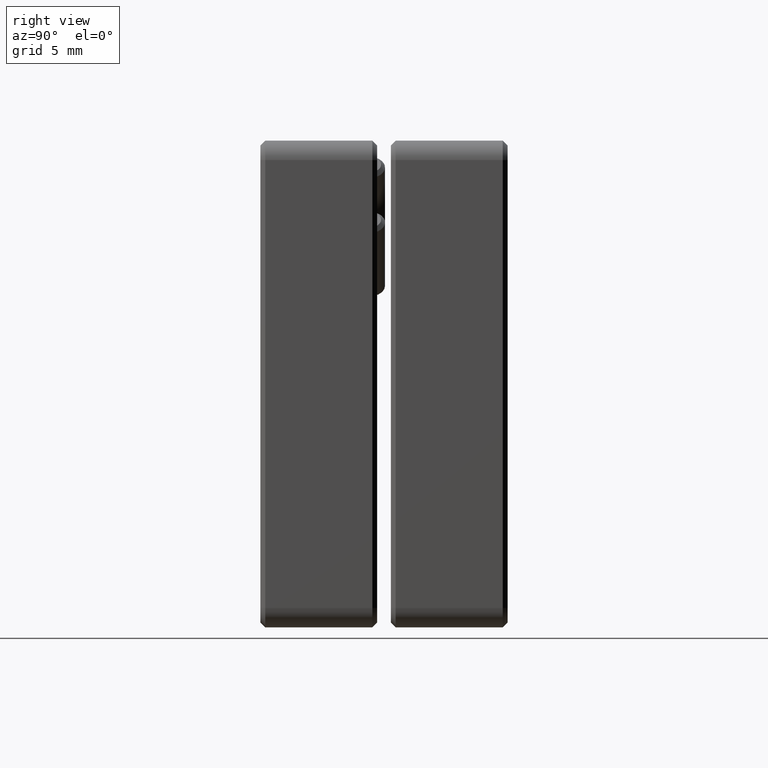
[diagram: clean part render]
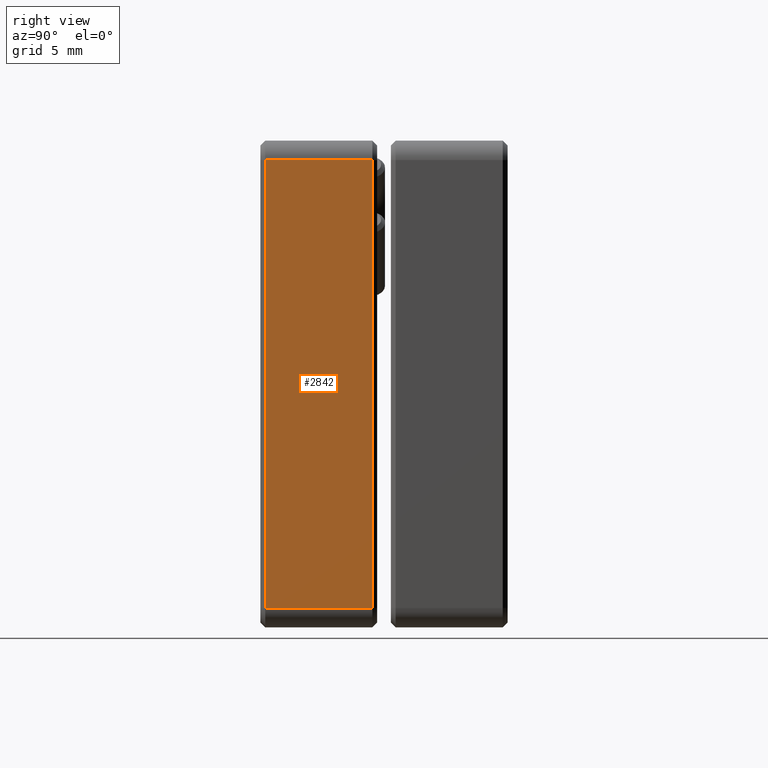
[diagram: same view with one face highlighted and labeled with its STEP entity id]
A machine part, right view. The second image highlights one B-rep face of the part: STEP entity #2842.
In plain terms, the highlighted planar face has unit normal (-1, 0, 0).
Its self-contained STEP definition (entity closure, byte-faithful):
#25 = CARTESIAN_POINT ( 'NONE',  ( 12.50000000000000711, 2.750000000000000000, 11.50000000000000178 ) ) ;
#28 = EDGE_CURVE ( 'NONE', #2700, #253, #1972, .T. ) ;
#36 = LINE ( 'NONE', #2045, #1917 ) ;
#42 = VECTOR ( 'NONE', #3046, 1000.000000000000000 ) ;
#113 = LINE ( 'NONE', #940, #3382 ) ;
#121 = CARTESIAN_POINT ( 'NONE',  ( 12.50000000000000355, 2.750000000000000000, -11.50000000000000000 ) ) ;
#253 = VERTEX_POINT ( 'NONE', #2708 ) ;
#346 = VERTEX_POINT ( 'NONE', #121 ) ;
#905 = AXIS2_PLACEMENT_3D ( 'NONE', #2452, #1469, #2699 ) ;
#940 = CARTESIAN_POINT ( 'NONE',  ( 12.50000000000000711, 2.750000000000000000, 11.50000000000000178 ) ) ;
#1049 = CARTESIAN_POINT ( 'NONE',  ( 12.50000000000000711, 3.000000000000000000, 11.50000000000000178 ) ) ;
#1089 = ORIENTED_EDGE ( 'NONE', *, *, #2413, .T. ) ;
#1113 = VERTEX_POINT ( 'NONE', #1802 ) ;
#1134 = FACE_OUTER_BOUND ( 'NONE', #1910, .T. ) ;
#1466 = ORIENTED_EDGE ( 'NONE', *, *, #28, .T. ) ;
#1469 = DIRECTION ( 'NONE',  ( -1.000000000000000000, 0.0000000000000000000, 1.387778780781445429E-16 ) ) ;
#1491 = LINE ( 'NONE', #3072, #42 ) ;
#1522 = DIRECTION ( 'NONE',  ( 1.387778780781445429E-16, 0.0000000000000000000, 1.000000000000000000 ) ) ;
#1802 = CARTESIAN_POINT ( 'NONE',  ( 12.50000000000000355, -2.750000000000000000, -11.50000000000000000 ) ) ;
#1805 = VECTOR ( 'NONE', #2072, 1000.000000000000000 ) ;
#1910 = EDGE_LOOP ( 'NONE', ( #1466, #2553, #2681, #1089 ) ) ;
#1917 = VECTOR ( 'NONE', #2828, 1000.000000000000000 ) ;
#1960 = PLANE ( 'NONE',  #905 ) ;
#1972 = LINE ( 'NONE', #1049, #1805 ) ;
#2045 = CARTESIAN_POINT ( 'NONE',  ( 12.50000000000000355, -2.750000000000000000, -12.49999999999999822 ) ) ;
#2052 = EDGE_CURVE ( 'NONE', #1113, #346, #1491, .T. ) ;
#2072 = DIRECTION ( 'NONE',  ( 0.0000000000000000000, -1.000000000000000000, 0.0000000000000000000 ) ) ;
#2413 = EDGE_CURVE ( 'NONE', #346, #2700, #113, .T. ) ;
#2452 = CARTESIAN_POINT ( 'NONE',  ( 12.50000000000000355, 3.000000000000000000, -12.49999999999999822 ) ) ;
#2476 = EDGE_CURVE ( 'NONE', #253, #1113, #36, .T. ) ;
#2553 = ORIENTED_EDGE ( 'NONE', *, *, #2476, .T. ) ;
#2681 = ORIENTED_EDGE ( 'NONE', *, *, #2052, .T. ) ;
#2699 = DIRECTION ( 'NONE',  ( 1.387778780781445429E-16, 0.0000000000000000000, 1.000000000000000000 ) ) ;
#2700 = VERTEX_POINT ( 'NONE', #25 ) ;
#2708 = CARTESIAN_POINT ( 'NONE',  ( 12.50000000000000711, -2.750000000000000000, 11.50000000000000178 ) ) ;
#2828 = DIRECTION ( 'NONE',  ( -1.387778780781445429E-16, 0.0000000000000000000, -1.000000000000000000 ) ) ;
#2842 = ADVANCED_FACE ( 'NONE', ( #1134 ), #1960, .F. ) ;
#3046 = DIRECTION ( 'NONE',  ( -0.0000000000000000000, 1.000000000000000000, -0.0000000000000000000 ) ) ;
#3072 = CARTESIAN_POINT ( 'NONE',  ( 12.50000000000000355, 3.000000000000000000, -11.50000000000000000 ) ) ;
#3382 = VECTOR ( 'NONE', #1522, 1000.000000000000000 ) ;